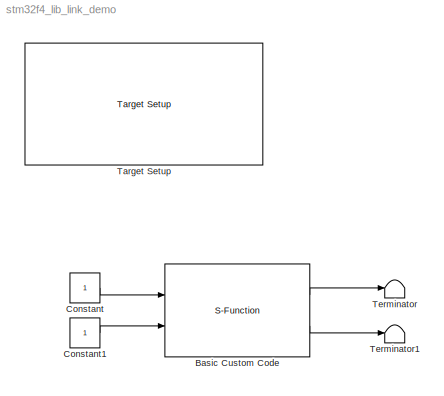
MODEL stm32f4_lib_link_demo
KIND model
CONFIG PreLoadFcn = waijung.modelPreload; % Required for working with Waijung Blockset. Do not remove.
BLOCK [S-Function] Basic Custom Code
  EnableBusSupport = off
  FunctionName = waijung_basic_customcode
  MaskCallbackString = waijung_basic_customcode_callback('inputporttype');|waijung_basic_customcode_callback('cinputportlabel');||||waijung_basic_customcode_callback('outputporttype');|waijung_basic_customcode_callback('coutputportlabel');||||||waijung_basic_customcode_callback('incfiles');||||||waijung_basic_customcode_callback('sampletime');||waijung_basic_customcode_callback('blockid');||||
  MaskDescription = This block implements a basic custom code block.\n\nAllowed input/output datatype:\ndynamic,double,single,int8,uint8,int16,uint16,int32,uint32,boolean. Leave this field empty if no input or output needed.\n\n\"Path for include files\" defines the include path. All *.h files in these path(s) will be used in the build process.\n\n\"Path for source files\" defines path to look for each source file(s)...<+672ch>
  MaskDisplay = text(0.5, 0.5, 'Ts (sec): 0.01','ver','middle','hor','center');port_label('input', 1,'to PD12');port_label('input', 2,'to PD13');port_label('output', 1,'NonInvOut');port_label('output', 2,'InvOut')
  MaskEnableString = on,on,on,on,on,on,on,on,on,on,on,on,on,on,on,on,on,on,on,on,on,on,on,off,off
  MaskHelp = web(fullfile(waijungdocroot,'waijung_basic_customcode.htm'), '-browser')
  MaskIconFrame = on
  MaskIconOpaque = on
  MaskIconRotate = none
  MaskIconUnits = normalized
  MaskInitialization = waijung_basic_customcode_callback('init');
  MaskPortRotate = default
  MaskPromptString = Input port definition (data type) separted by comma e.g. double, single, double, uint8|Custom input port labels (Ex. In1, In2, In3)|Custom input port type string|Input port count|Input port data type ID|Output port definition  (data type) separted by comma e.g. double, single, double, uint8|Custom output port labels (Ex. Out1, Out2, Out3)|Custom output port type string|Output port count|Output por...<+589ch>
  MaskSelfModifiable = on
  MaskStyleString = edit,edit,edit,edit,edit,edit,edit,edit,edit,edit,edit,edit,edit,edit,edit,edit,edit,edit,edit,edit,edit,checkbox,edit,edit,edit
  MaskTabNameString = ,,,,,,,,,,,,,,,,,,,,,,,,
  MaskToolTipString = on,on,on,on,on,on,on,on,on,on,on,on,on,on,on,on,on,on,on,on,on,on,on,on,on
  MaskTunableValueString = off,off,off,off,off,off,off,off,off,off,off,off,off,off,off,off,off,off,off,off,off,off,off,off,off
  MaskType = waijung_basic_customcode
  MaskValueString = boolean,boolean|to PD12, to PD13|[\"to PD12\",\" to PD13\"]|2|[8  8]|boolean,boolean|NonInvOut, InvOut|[\"NonInvOut\",\" InvOut\"]|2|[8  8]|{fullfile(pwd,'customcode')}|{fullfile(pwd,'customcode')}|{'stm32f4_io_customcode.h'}|{'stm32f4_io_customcode.c'}||enable_customio();|output_customio(in1,in2,out1,out2);|disable_customio();|-1|0.01|BasicCustomCode|on|[\"stm32f4_io_customcode.h\"]|[1  1  1  8;1...<+34ch>
  MaskVarAliasString = ,,,,,,,,,,,,,,,,,,,,,,,,
  MaskVariables = inputporttype=&1;cinputportlabel=&2;cinputportlabelstr=&3;inputportcount=@4;inputporttypeid=@5;outputporttype=&6;coutputportlabel=&7;coutputportlabelstr=&8;outputportcount=@9;outputporttypeid=@10;incpath=@11;srcpath=@12;incfiles=@13;srcfiles=@14;initialfuncallstr=&15;enablefuncallstr=&16;outputfuncallstr=&17;disablefuncallstr=&18;sampletime=@19;sampletimestr=&20;blockid=&21;enablecustomportlabel=@...<+66ch>
  MaskVisibilityString = on,on,off,off,off,on,on,off,off,off,on,on,on,on,on,on,on,on,on,off,off,off,off,off,off
  Parameters = inputportcount,inputporttypeid,outputportcount,outputporttypeid,sampletime,blockid,cinputportlabelstr,coutputportlabelstr,incfilestrarray,outputporttype,inputporttype,initialfuncallstr,enablefuncallstr,outputfuncallstr,disablefuncallstr,inputportdiminfo,outputportdiminfo
  Ports = [2, 2]
BLOCK [Constant] Constant
  OutDataType = fixdt(1, 16)
  OutDataTypeMode = boolean
  OutDataTypeStr = boolean
  OutScaling = 2^0
BLOCK [Constant] Constant1
  OutDataType = fixdt(1, 16)
  OutDataTypeMode = boolean
  OutDataTypeStr = boolean
  OutScaling = 2^0
BLOCK [Reference] Target Setup  REF=stm32f4_device_config_lib/Target Setup
  Ports = []
  Priority = 100
  SourceBlock = stm32f4_device_config_lib/Target Setup
  SourceType = stm32f4_target_setup
  assemblercontrolstr = $(patsubst %, -I%, .) -mcpu=cortex-m4 -mthumb -mthumb-interwork -mfloat-abi=hard -mfpu=fpv4-sp-d16 -ffast-math -Wall -Wextra -Ofast -Wa,-amhls=$(<:.s=.lst) -D__STACK_SIZE=$(STACK_SIZE) -D__HEAP_SIZE=$(HEAP_SIZE)
  blockid = TargetSetup
  clockconfig = HSEOSC-8MHz
  compiler = GNU ARM
  compilercontrolstr = $(patsubst %, -I%, .) -mcpu=cortex-m4 -mthumb -mthumb-interwork -mfloat-abi=hard -mfpu=fpv4-sp-d16 -ffast-math -Wall -Wextra -Ofast
  editctrlstr = on
  enableautocompiledownload = on
  execprofile = None
  flashlength = 1024k
  flashorigin = 0x8000000
  fullchiperase = off
  hclk = 168000000
  heapsize = 0x200
  hseval = 8000000
  lastprofileruart = 1
  linkercontrolstr = -T$(LD_SCRIPT) -g -Wl,-Map=$(MAP),--cref,--no-warn-mismatch -mcpu=cortex-m4 -mthumb -mthumb-interwork -mfloat-abi=hard -mfpu=fpv4-sp-d16 -specs=nosys.specs
  manualsetsampletime = off
  mcu = STM32F417IG (LQFP176)
  mcustr = STM32F417IG
  previous_compiler = GNU ARM
  profilerbaud = 115200
  profilerinitstr = 0.01,168000000,1680000,115200,0
  profilertxpin = D8
  profileruart = 1
  programmerinterface = ST-Link
  ramlength = 128k
  ramorigin = 0x20000000
  runafterdownload = on
  sampletime = 0.01
  showmemoryconfiguration = off
  stacksize = 0x400
  system_stm32f4xx_c_path = <path>
  systickreloadvalue = 1680000
  useextram = off
BLOCK [Terminator] Terminator
BLOCK [Terminator] Terminator1
LINE Basic Custom Code:1 -> Terminator:1
LINE Basic Custom Code:2 -> Terminator1:1
LINE Constant1:1 -> Basic Custom Code:2
LINE Constant:1 -> Basic Custom Code:1
note: 1 file-system path scrubbed to <path> (not preserved elsewhere — flat text is the only slx artifact)
